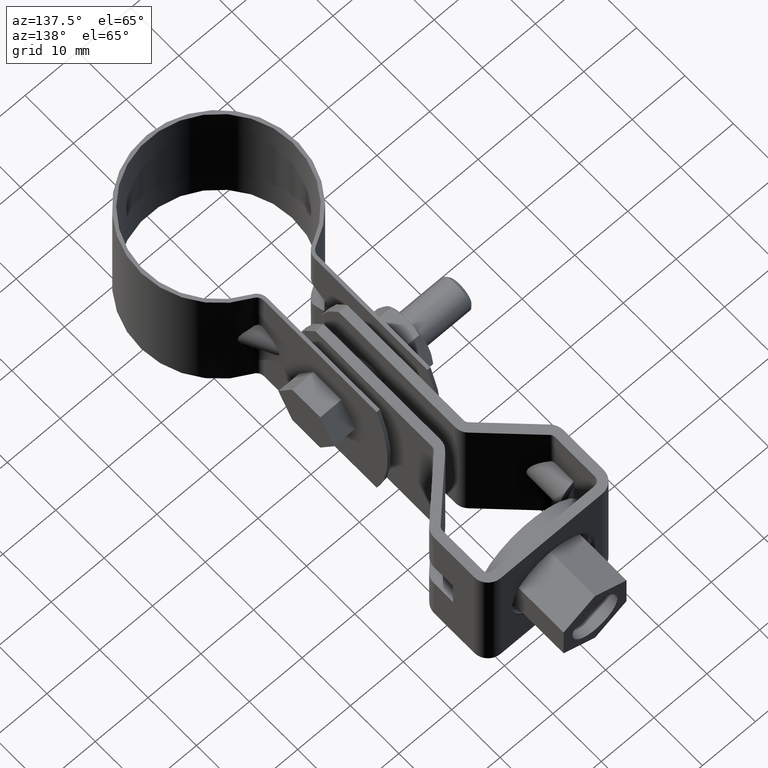
[diagram: clean part render]
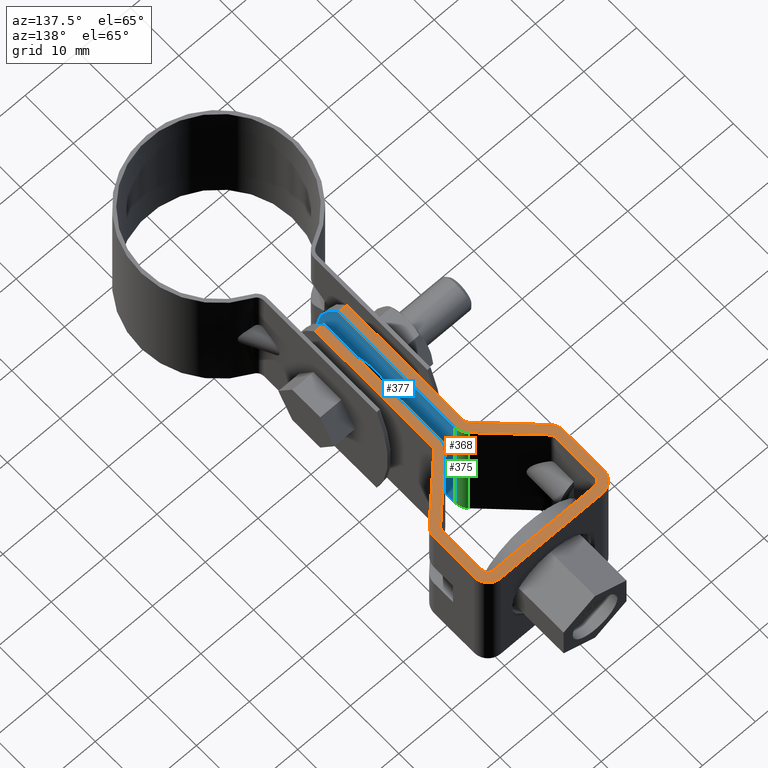
[diagram: same view with three faces highlighted in distinct colors, each labeled with its STEP entity id]
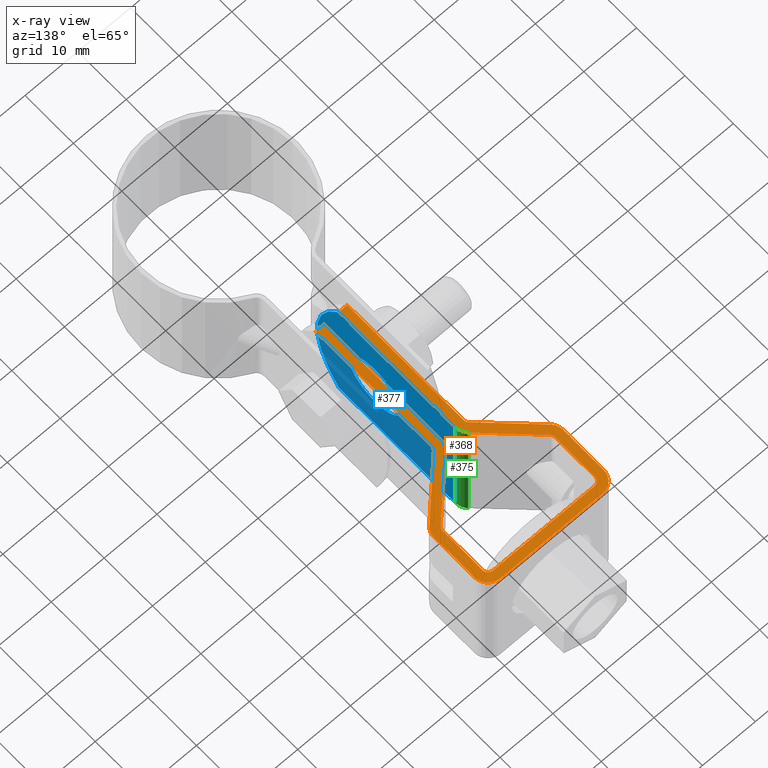
[diagram: x-ray of the same camera — body ghosted, the three highlighted faces saturated]
A machine part, auxiliary view with three faces highlighted in distinct colors.
The next image is the same camera in x-ray (body ghosted, the three faces saturated) — at least one of them is partly hidden behind the body in this view.
Their STEP definitions:

[orange] entity #368 — the highlighted planar face has unit normal (0, -0, 1).
#368 = ADVANCED_FACE( '', ( #613 ), #614, .T. );
#613 = FACE_OUTER_BOUND( '', #885, .T. );
#614 = PLANE( '', #886 );
#885 = EDGE_LOOP( '', ( #1756, #1757, #1758, #1759, #1760, #1761, #1762, #1763, #1764, #1765, #1766, #1767, #1768, #1769, #1770, #1771, #1772, #1773, #1774, #1775, #1776, #1777, #1778, #1779, #1780, #1781, #1782, #1783 ) );
#886 = AXIS2_PLACEMENT_3D( '', #1784, #1785, #1786 );
#1756 = ORIENTED_EDGE( '', *, *, #2206, .T. );
#1757 = ORIENTED_EDGE( '', *, *, #2171, .T. );
#1758 = ORIENTED_EDGE( '', *, *, #2180, .F. );
#1759 = ORIENTED_EDGE( '', *, *, #2174, .F. );
#1760 = ORIENTED_EDGE( '', *, *, #2179, .F. );
#1761 = ORIENTED_EDGE( '', *, *, #2168, .T. );
#1762 = ORIENTED_EDGE( '', *, *, #2215, .T. );
#1763 = ORIENTED_EDGE( '', *, *, #2216, .T. );
#1764 = ORIENTED_EDGE( '', *, *, #2217, .T. );
#1765 = ORIENTED_EDGE( '', *, *, #2123, .T. );
#1766 = ORIENTED_EDGE( '', *, *, #2214, .T. );
#1767 = ORIENTED_EDGE( '', *, *, #2166, .F. );
#1768 = ORIENTED_EDGE( '', *, *, #2153, .F. );
#1769 = ORIENTED_EDGE( '', *, *, #2218, .F. );
#1770 = ORIENTED_EDGE( '', *, *, #2219, .F. );
#1771 = ORIENTED_EDGE( '', *, *, #2220, .F. );
#1772 = ORIENTED_EDGE( '', *, *, #2130, .T. );
#1773 = ORIENTED_EDGE( '', *, *, #2126, .T. );
#1774 = ORIENTED_EDGE( '', *, *, #2221, .T. );
#1775 = ORIENTED_EDGE( '', *, *, #2222, .F. );
#1776 = ORIENTED_EDGE( '', *, *, #2159, .F. );
#1777 = ORIENTED_EDGE( '', *, *, #2156, .F. );
#1778 = ORIENTED_EDGE( '', *, *, #2163, .F. );
#1779 = ORIENTED_EDGE( '', *, *, #2164, .F. );
#1780 = ORIENTED_EDGE( '', *, *, #2213, .T. );
#1781 = ORIENTED_EDGE( '', *, *, #2211, .T. );
#1782 = ORIENTED_EDGE( '', *, *, #2208, .T. );
#1783 = ORIENTED_EDGE( '', *, *, #2204, .T. );
#1784 = CARTESIAN_POINT( '', ( 9.65000000391955, 66.2129669072768, 12.5000013818920 ) );
#1785 = DIRECTION( '', ( 1.87698704392248E-011, -9.98350074832307E-009, 1.00000000000000 ) );
#1786 = DIRECTION( '', ( 1.39877502405819E-011, 1.00000000000000, 9.98350074832280E-009 ) );
#2123 = EDGE_CURVE( '', #2577, #2578, #2579, .T. );
#2126 = EDGE_CURVE( '', #2582, #2583, #2584, .T. );
#2130 = EDGE_CURVE( '', #2589, #2582, #2590, .T. );
#2153 = EDGE_CURVE( '', #2626, #2628, #2629, .T. );
#2156 = EDGE_CURVE( '', #2631, #2633, #2634, .T. );
#2159 = EDGE_CURVE( '', #2633, #2637, #2638, .T. );
#2163 = EDGE_CURVE( '', #2641, #2631, #2643, .T. );
#2164 = EDGE_CURVE( '', #2644, #2641, #2645, .T. );
#2166 = EDGE_CURVE( '', #2628, #2647, #2648, .T. );
#2168 = EDGE_CURVE( '', #2650, #2651, #2652, .F. );
#2171 = EDGE_CURVE( '', #2655, #2656, #2657, .T. );
#2174 = EDGE_CURVE( '', #2660, #2661, #2662, .T. );
#2179 = EDGE_CURVE( '', #2650, #2660, #2669, .T. );
#2180 = EDGE_CURVE( '', #2661, #2656, #2670, .T. );
#2204 = EDGE_CURVE( '', #2711, #2709, #2712, .T. );
#2206 = EDGE_CURVE( '', #2709, #2655, #2714, .T. );
#2208 = EDGE_CURVE( '', #2716, #2711, #2717, .T. );
#2211 = EDGE_CURVE( '', #2720, #2716, #2721, .T. );
#2213 = EDGE_CURVE( '', #2644, #2720, #2723, .T. );
#2214 = EDGE_CURVE( '', #2578, #2647, #2724, .T. );
#2215 = EDGE_CURVE( '', #2651, #2725, #2726, .T. );
#2216 = EDGE_CURVE( '', #2725, #2727, #2728, .T. );
#2217 = EDGE_CURVE( '', #2727, #2577, #2729, .T. );
#2218 = EDGE_CURVE( '', #2730, #2626, #2731, .T. );
#2219 = EDGE_CURVE( '', #2732, #2730, #2733, .T. );
#2220 = EDGE_CURVE( '', #2589, #2732, #2734, .F. );
#2221 = EDGE_CURVE( '', #2583, #2735, #2736, .T. );
#2222 = EDGE_CURVE( '', #2637, #2735, #2737, .T. );
#2577 = VERTEX_POINT( '', #3335 );
#2578 = VERTEX_POINT( '', #3336 );
#2579 = CIRCLE( '', #3337, 2.59999999999999 );
#2582 = VERTEX_POINT( '', #3342 );
#2583 = VERTEX_POINT( '', #3343 );
#2584 = LINE( '', #3344, #3345 );
#2589 = VERTEX_POINT( '', #3350 );
#2590 = LINE( '', #3351, #3352 );
#2626 = VERTEX_POINT( '', #3425 );
#2628 = VERTEX_POINT( '', #3428 );
#2629 = LINE( '', #3429, #3430 );
#2631 = VERTEX_POINT( '', #3433 );
#2633 = VERTEX_POINT( '', #3436 );
#2634 = CIRCLE( '', #3437, 0.999999999999999 );
#2637 = VERTEX_POINT( '', #3442 );
#2638 = LINE( '', #3443, #3444 );
#2641 = VERTEX_POINT( '', #3449 );
#2643 = LINE( '', #3452, #3453 );
#2644 = VERTEX_POINT( '', #3454 );
#2645 = CIRCLE( '', #3455, 1.00000000000000 );
#2647 = VERTEX_POINT( '', #3458 );
#2648 = CIRCLE( '', #3459, 2.59999999999999 );
#2650 = VERTEX_POINT( '', #3462 );
#2651 = VERTEX_POINT( '', #3463 );
#2652 = CIRCLE( '', #3464, 1.00000000000000 );
#2655 = VERTEX_POINT( '', #3469 );
#2656 = VERTEX_POINT( '', #3470 );
#2657 = CIRCLE( '', #3471, 2.60000000000000 );
#2660 = VERTEX_POINT( '', #3476 );
#2661 = VERTEX_POINT( '', #3477 );
#2662 = LINE( '', #3478, #3479 );
#2669 = LINE( '', #3486, #3487 );
#2670 = LINE( '', #3488, #3489 );
#2709 = VERTEX_POINT( '', #3564 );
#2711 = VERTEX_POINT( '', #3567 );
#2712 = CIRCLE( '', #3568, 1.00000000000000 );
#2714 = LINE( '', #3571, #3572 );
#2716 = VERTEX_POINT( '', #3575 );
#2717 = LINE( '', #3576, #3577 );
#2720 = VERTEX_POINT( '', #3582 );
#2721 = CIRCLE( '', #3583, 1.00000000000000 );
#2723 = LINE( '', #3586, #3587 );
#2724 = LINE( '', #3588, #3589 );
#2725 = VERTEX_POINT( '', #3590 );
#2726 = LINE( '', #3591, #3592 );
#2727 = VERTEX_POINT( '', #3593 );
#2728 = CIRCLE( '', #3594, 2.59999999999999 );
#2729 = LINE( '', #3595, #3596 );
#2730 = VERTEX_POINT( '', #3597 );
#2731 = CIRCLE( '', #3598, 2.59999999999999 );
#2732 = VERTEX_POINT( '', #3599 );
#2733 = LINE( '', #3600, #3601 );
#2734 = CIRCLE( '', #3602, 0.999999999999998 );
#2735 = VERTEX_POINT( '', #3603 );
#2736 = LINE( '', #3604, #3605 );
#2737 = CIRCLE( '', #3606, 2.59999999999999 );
#3335 = CARTESIAN_POINT( '', ( 12.2500000039195, 66.2129669072404, 12.5000013818432 ) );
#3336 = CARTESIAN_POINT( '', ( 9.65000000395592, 68.8129669072768, 12.5000014078491 ) );
#3337 = AXIS2_PLACEMENT_3D( '', #4002, #4003, #4004 );
#3342 = CARTESIAN_POINT( '', ( -2.99999999668052, 23.3129669405422, 12.5000009538372 ) );
#3343 = CARTESIAN_POINT( '', ( -1.39999999668053, 23.3129669405198, 12.5000009538072 ) );
#3344 = CARTESIAN_POINT( '', ( -38.4737108532763, 23.3129669459299, 12.5000009604163 ) );
#3345 = VECTOR( '', #4007, 999.999999999998 );
#3350 = CARTESIAN_POINT( '', ( -2.99999999634406, 47.3671133119744, 12.5000011939818 ) );
#3351 = CARTESIAN_POINT( '', ( -2.99999999633816, 47.7885770808644, 12.5000011981895 ) );
#3352 = VECTOR( '', #4017, 1000.00000000000 );
#3425 = CARTESIAN_POINT( '', ( -12.2499999961966, 57.9087727066976, 12.5000012993981 ) );
#3428 = CARTESIAN_POINT( '', ( -12.2499999960804, 66.2129669075835, 12.5000013823030 ) );
#3429 = CARTESIAN_POINT( '', ( -12.2499999961966, 57.9087727066976, 12.5000012993981 ) );
#3430 = VECTOR( '', #4048, 1000.00000000000 );
#3433 = CARTESIAN_POINT( '', ( -10.6499999961966, 57.9087726764511, 12.5000012993681 ) );
#3436 = CARTESIAN_POINT( '', ( -10.3483238317371, 57.1929907119284, 12.5000012922164 ) );
#3437 = AXIS2_PLACEMENT_3D( '', #4051, #4052, #4053 );
#3442 = CARTESIAN_POINT( '', ( -2.18435802393874, 49.2281463894870, 12.5000012125461 ) );
#3443 = CARTESIAN_POINT( '', ( -10.3483238317371, 57.1929907119284, 12.5000012922164 ) );
#3444 = VECTOR( '', #4056, 1000.00000000000 );
#3449 = CARTESIAN_POINT( '', ( -10.6499999960804, 66.2129669075611, 12.5000013822730 ) );
#3452 = CARTESIAN_POINT( '', ( -10.6499999960804, 66.2129669075611, 12.5000013822730 ) );
#3453 = VECTOR( '', #4060, 1000.00000000000 );
#3454 = CARTESIAN_POINT( '', ( -9.64999999606646, 67.2129669075471, 12.5000013922377 ) );
#3455 = AXIS2_PLACEMENT_3D( '', #4061, #4062, #4063 );
#3458 = CARTESIAN_POINT( '', ( -9.64999999604408, 68.8129669075471, 12.5000014082113 ) );
#3459 = AXIS2_PLACEMENT_3D( '', #4065, #4066, #4067 );
#3462 = CARTESIAN_POINT( '', ( 3.00000000365593, 47.3671133118901, 12.5000011938692 ) );
#3463 = CARTESIAN_POINT( '', ( 3.30167616813544, 48.0828952764044, 12.5000012010096 ) );
#3464 = AXIS2_PLACEMENT_3D( '', #4069, #4070, #4071 );
#3469 = CARTESIAN_POINT( '', ( 2.18435803130267, 49.2281463894255, 12.5000012124642 ) );
#3470 = CARTESIAN_POINT( '', ( 1.40000000365594, 47.3671132816884, 12.5000011938993 ) );
#3471 = AXIS2_PLACEMENT_3D( '', #4074, #4075, #4076 );
#3476 = CARTESIAN_POINT( '', ( 3.00000000331946, 23.3129669404581, 12.5000009537247 ) );
#3477 = CARTESIAN_POINT( '', ( 1.40000000331947, 23.3129669404804, 12.5000009537547 ) );
#3478 = CARTESIAN_POINT( '', ( 38.4737108599154, 23.3129669448533, 12.5000009589720 ) );
#3479 = VECTOR( '', #4079, 1000.00000000000 );
#3486 = CARTESIAN_POINT( '', ( 3.00000000366182, 47.7885770807802, 12.5000011980769 ) );
#3487 = VECTOR( '', #4092, 1000.00000000000 );
#3488 = CARTESIAN_POINT( '', ( 1.40000000325652, 18.8129669073924, 12.5000009088289 ) );
#3489 = VECTOR( '', #4093, 1000.00000000000 );
#3564 = CARTESIAN_POINT( '', ( 10.3483238393239, 57.1929907116386, 12.5000012918280 ) );
#3567 = CARTESIAN_POINT( '', ( 10.6500000038034, 57.9087726761529, 12.5000012989683 ) );
#3568 = AXIS2_PLACEMENT_3D( '', #4129, #4130, #4131 );
#3571 = CARTESIAN_POINT( '', ( 10.3483238393239, 57.1929907116386, 12.5000012918280 ) );
#3572 = VECTOR( '', #4133, 1000.00000000000 );
#3575 = CARTESIAN_POINT( '', ( 10.6500000039195, 66.2129669072628, 12.5000013818732 ) );
#3576 = CARTESIAN_POINT( '', ( 10.6500000039195, 66.2129669072628, 12.5000013818732 ) );
#3577 = VECTOR( '', #4135, 1000.00000000000 );
#3582 = CARTESIAN_POINT( '', ( 9.65000000393354, 67.2129669072768, 12.5000013918755 ) );
#3583 = AXIS2_PLACEMENT_3D( '', #4138, #4139, #4140 );
#3586 = CARTESIAN_POINT( '', ( -9.64999999606647, 67.2129669075467, 12.5000013922378 ) );
#3587 = VECTOR( '', #4142, 1000.00000000000 );
#3588 = CARTESIAN_POINT( '', ( 9.65000000395592, 68.8129669072768, 12.5000014078491 ) );
#3589 = VECTOR( '', #4143, 1000.00000000000 );
#3590 = CARTESIAN_POINT( '', ( 11.4656419761567, 56.0477395986174, 12.5000012803734 ) );
#3591 = CARTESIAN_POINT( '', ( 3.90167616814363, 48.6682611029856, 12.5000012068423 ) );
#3592 = VECTOR( '', #4144, 1000.00000000000 );
#3593 = CARTESIAN_POINT( '', ( 12.2500000038034, 57.9087727063546, 12.5000012989383 ) );
#3594 = AXIS2_PLACEMENT_3D( '', #4145, #4146, #4147 );
#3595 = CARTESIAN_POINT( '', ( 12.2500000038034, 57.9087727063546, 12.5000012989383 ) );
#3596 = VECTOR( '', #4148, 1000.00000000000 );
#3597 = CARTESIAN_POINT( '', ( -11.4656419686019, 56.0477395989385, 12.5000012808038 ) );
#3598 = AXIS2_PLACEMENT_3D( '', #4149, #4150, #4151 );
#3599 = CARTESIAN_POINT( '', ( -3.30167616080354, 48.0828952764971, 12.5000012011335 ) );
#3600 = CARTESIAN_POINT( '', ( -3.90167616079536, 48.6682611030951, 12.5000012069887 ) );
#3601 = VECTOR( '', #4152, 1000.00000000000 );
#3602 = AXIS2_PLACEMENT_3D( '', #4153, #4154, #4155 );
#3603 = CARTESIAN_POINT( '', ( -1.39999999634407, 47.3671132817279, 12.5000011939518 ) );
#3604 = CARTESIAN_POINT( '', ( -1.39999999674347, 18.8129669074317, 12.5000009088814 ) );
#3605 = VECTOR( '', #4156, 1000.00000000000 );
#3606 = AXIS2_PLACEMENT_3D( '', #4157, #4158, #4159 );
#4002 = CARTESIAN_POINT( '', ( 9.65000000391955, 66.2129669072768, 12.5000013818920 ) );
#4003 = DIRECTION( '', ( 1.87698704392248E-011, -9.98350074832307E-009, 1.00000000000000 ) );
#4004 = DIRECTION( '', ( 1.00000000000000, -1.39877500531929E-011, -1.87698705788715E-011 ) );
#4007 = DIRECTION( '', ( 1.00000000000000, -1.39876275925575E-011, -1.87698705788703E-011 ) );
#4017 = DIRECTION( '', ( -1.39875167576440E-011, -1.00000000000000, -9.98350074832280E-009 ) );
#4048 = DIRECTION( '', ( 1.39876277799465E-011, 1.00000000000000, 9.98350074832280E-009 ) );
#4051 = CARTESIAN_POINT( '', ( -9.64999999619660, 57.9087726764371, 12.5000012993493 ) );
#4052 = DIRECTION( '', ( 1.87698704392248E-011, -9.98350074832307E-009, 1.00000000000000 ) );
#4053 = DIRECTION( '', ( -1.00000000000000, 1.39876275925575E-011, 1.87698705788703E-011 ) );
#4056 = DIRECTION( '', ( 0.715781964508736, -0.698323835540514, -6.98515166942712E-009 ) );
#4060 = DIRECTION( '', ( -1.39876277799465E-011, -1.00000000000000, -9.98350074832280E-009 ) );
#4061 = CARTESIAN_POINT( '', ( -9.64999999608044, 66.2129669075471, 12.5000013822542 ) );
#4062 = DIRECTION( '', ( 1.87698704392248E-011, -9.98350074832307E-009, 1.00000000000000 ) );
#4063 = DIRECTION( '', ( 1.39876277799465E-011, 1.00000000000000, 9.98350074832281E-009 ) );
#4065 = CARTESIAN_POINT( '', ( -9.64999999608044, 66.2129669075471, 12.5000013822542 ) );
#4066 = DIRECTION( '', ( -1.87698704392248E-011, 9.98350074832307E-009, -1.00000000000000 ) );
#4067 = DIRECTION( '', ( -1.00000000000000, 1.39876275925575E-011, 1.87698705788703E-011 ) );
#4069 = CARTESIAN_POINT( '', ( 4.00000000365593, 47.3671133118761, 12.5000011938505 ) );
#4070 = DIRECTION( '', ( 1.87698704392248E-011, -9.98350074832307E-009, 1.00000000000000 ) );
#4071 = DIRECTION( '', ( 1.00000000000000, -1.39877500531929E-011, -1.87698705788715E-011 ) );
#4074 = CARTESIAN_POINT( '', ( 4.00000000365593, 47.3671132816520, 12.5000011938505 ) );
#4075 = DIRECTION( '', ( 1.87698704392248E-011, -9.98350074832307E-009, 1.00000000000000 ) );
#4076 = DIRECTION( '', ( 1.00000000000000, -1.39877500531929E-011, -1.87698705788715E-011 ) );
#4079 = DIRECTION( '', ( -1.00000000000000, 1.39877500531929E-011, 1.87698705788715E-011 ) );
#4092 = DIRECTION( '', ( -1.39878612628844E-011, -1.00000000000000, -9.98350074832280E-009 ) );
#4093 = DIRECTION( '', ( 1.39878612628844E-011, 1.00000000000000, 9.98350074832280E-009 ) );
#4129 = CARTESIAN_POINT( '', ( 9.65000000380339, 57.9087726761668, 12.5000012989871 ) );
#4130 = DIRECTION( '', ( -1.87698704392248E-011, 9.98350074832307E-009, -1.00000000000000 ) );
#4131 = DIRECTION( '', ( 1.00000000000000, -1.39877500531929E-011, -1.87698705788715E-011 ) );
#4133 = DIRECTION( '', ( -0.715781964528273, -0.698323835520488, -6.95828139975370E-009 ) );
#4135 = DIRECTION( '', ( -1.39877502405819E-011, -1.00000000000000, -9.98350074832280E-009 ) );
#4138 = CARTESIAN_POINT( '', ( 9.65000000391955, 66.2129669072768, 12.5000013818920 ) );
#4139 = DIRECTION( '', ( -1.87698704392248E-011, 9.98350074832307E-009, -1.00000000000000 ) );
#4140 = DIRECTION( '', ( 1.39877502405819E-011, 1.00000000000000, 9.98350074832280E-009 ) );
#4142 = DIRECTION( '', ( 1.00000000000000, -1.39877500531929E-011, -1.87698705788715E-011 ) );
#4143 = DIRECTION( '', ( -1.00000000000000, 1.39877500531929E-011, 1.87698705788715E-011 ) );
#4144 = DIRECTION( '', ( 0.715781964528273, 0.698323835520488, 6.95828139975370E-009 ) );
#4145 = CARTESIAN_POINT( '', ( 9.65000000380339, 57.9087727063909, 12.5000012989871 ) );
#4146 = DIRECTION( '', ( 1.87698704392248E-011, -9.98350074832307E-009, 1.00000000000000 ) );
#4147 = DIRECTION( '', ( 0.698323835520490, -0.715781964528272, -7.15911722642150E-009 ) );
#4148 = DIRECTION( '', ( 1.39877502405819E-011, 1.00000000000000, 9.98350074832280E-009 ) );
#4149 = CARTESIAN_POINT( '', ( -9.64999999619660, 57.9087727066612, 12.5000012993493 ) );
#4150 = DIRECTION( '', ( -1.87698704392238E-011, 9.98350074832307E-009, -1.00000000000000 ) );
#4151 = DIRECTION( '', ( -0.698323835540512, -0.715781964508738, -7.13290233039142E-009 ) );
#4152 = DIRECTION( '', ( -0.715781964508736, 0.698323835540514, 6.98515166942712E-009 ) );
#4153 = CARTESIAN_POINT( '', ( -3.99999999634406, 47.3671133119883, 12.5000011940006 ) );
#4154 = DIRECTION( '', ( -1.87698704392248E-011, 9.98350074832307E-009, -1.00000000000000 ) );
#4155 = DIRECTION( '', ( -1.00000000000000, 1.39876275925575E-011, 1.87698705788703E-011 ) );
#4156 = DIRECTION( '', ( 1.39875167576440E-011, 1.00000000000000, 9.98350074832280E-009 ) );
#4157 = CARTESIAN_POINT( '', ( -3.99999999634405, 47.3671132817642, 12.5000011940006 ) );
#4158 = DIRECTION( '', ( -1.87698704392248E-011, 9.98350074832307E-009, -1.00000000000000 ) );
#4159 = DIRECTION( '', ( -1.00000000000000, 1.39876275925575E-011, 1.87698705788703E-011 ) );

[blue] entity #377 — the highlighted planar face has unit normal (1, -0, -0).
#377 = ADVANCED_FACE( '', ( #632, #633 ), #634, .T. );
#632 = FACE_BOUND( '', #904, .T. );
#633 = FACE_OUTER_BOUND( '', #905, .T. );
#634 = PLANE( '', #906 );
#904 = EDGE_LOOP( '', ( #1849 ) );
#905 = EDGE_LOOP( '', ( #1850, #1851, #1852, #1853 ) );
#906 = AXIS2_PLACEMENT_3D( '', #1854, #1855, #1856 );
#1849 = ORIENTED_EDGE( '', *, *, #2228, .F. );
#1850 = ORIENTED_EDGE( '', *, *, #2221, .F. );
#1851 = ORIENTED_EDGE( '', *, *, #2128, .F. );
#1852 = ORIENTED_EDGE( '', *, *, #2107, .T. );
#1853 = ORIENTED_EDGE( '', *, *, #2227, .F. );
#1854 = CARTESIAN_POINT( '', ( -1.39999999674347, 18.8129669074317, 12.5000009088814 ) );
#1855 = DIRECTION( '', ( 1.00000000000000, -1.39878496371630E-011, -1.87698093485548E-011 ) );
#1856 = DIRECTION( '', ( -1.39878498245514E-011, -1.00000000000000, -9.98350074832280E-009 ) );
#2107 = EDGE_CURVE( '', #2546, #2544, #2547, .T. );
#2128 = EDGE_CURVE( '', #2546, #2583, #2586, .T. );
#2221 = EDGE_CURVE( '', #2583, #2735, #2736, .T. );
#2227 = EDGE_CURVE( '', #2735, #2544, #2742, .T. );
#2228 = EDGE_CURVE( '', #2743, #2743, #2744, .F. );
#2544 = VERTEX_POINT( '', #3292 );
#2546 = VERTEX_POINT( '', #3294 );
#2547 = LINE( '', #3295, #3296 );
#2583 = VERTEX_POINT( '', #3343 );
#2586 = CIRCLE( '', #3347, 19.6111110000000 );
#2735 = VERTEX_POINT( '', #3603 );
#2736 = LINE( '', #3604, #3605 );
#2742 = LINE( '', #3615, #3616 );
#2743 = VERTEX_POINT( '', #3617 );
#2744 = CIRCLE( '', #3618, 5.25000000000002 );
#3292 = CARTESIAN_POINT( '', ( -1.39999999681331, 47.3671135313154, -12.4999988060482 ) );
#3294 = CARTESIAN_POINT( '', ( -1.39999999714977, 23.3129671901073, -12.4999990461928 ) );
#3295 = CARTESIAN_POINT( '', ( -1.39999999721272, 18.8129671570193, -12.4999990911185 ) );
#3296 = VECTOR( '', #3974, 1000.00000000000 );
#3343 = CARTESIAN_POINT( '', ( -1.39999999668053, 23.3129669405198, 12.5000009538072 ) );
#3347 = AXIS2_PLACEMENT_3D( '', #4011, #4012, #4013 );
#3603 = CARTESIAN_POINT( '', ( -1.39999999634407, 47.3671132817279, 12.5000011939518 ) );
#3604 = CARTESIAN_POINT( '', ( -1.39999999674347, 18.8129669074317, 12.5000009088814 ) );
#3605 = VECTOR( '', #4156, 1000.00000000000 );
#3615 = CARTESIAN_POINT( '', ( -1.39999999634406, 47.3671132817279, 12.5000011939518 ) );
#3616 = VECTOR( '', #4164, 1000.00000000000 );
#3617 = CARTESIAN_POINT( '', ( -1.39999999688368, 25.5629670322253, 9.76270078931197E-007 ) );
#3618 = AXIS2_PLACEMENT_3D( '', #4165, #4166, #4167 );
#3974 = DIRECTION( '', ( 1.39875167576440E-011, 1.00000000000000, 9.98350074832280E-009 ) );
#4011 = CARTESIAN_POINT( '', ( -1.39999999670377, 38.4240780322253, 1.10466895353323E-006 ) );
#4012 = DIRECTION( '', ( -1.00000000000000, 1.39878496371630E-011, 1.87698093485548E-011 ) );
#4013 = DIRECTION( '', ( -1.39878498245514E-011, -1.00000000000000, -9.98350074832280E-009 ) );
#4156 = DIRECTION( '', ( 1.39875167576440E-011, 1.00000000000000, 9.98350074832280E-009 ) );
#4164 = DIRECTION( '', ( -1.87698092089071E-011, 9.98350068858617E-009, -1.00000000000000 ) );
#4165 = CARTESIAN_POINT( '', ( -1.39999999681024, 30.8129670322254, 1.02868345785989E-006 ) );
#4166 = DIRECTION( '', ( -1.00000000000000, 1.39878496371630E-011, 1.87698093485548E-011 ) );
#4167 = DIRECTION( '', ( -1.39878498245514E-011, -1.00000000000000, -9.98350074832280E-009 ) );

[green] entity #375 — the highlighted cylindrical surface (edge-blend (fillet) strip) has radius 2.6 mm, axis along (0, -0, 1).
#375 = ADVANCED_FACE( '', ( #627 ), #628, .T. );
#627 = FACE_OUTER_BOUND( '', #899, .T. );
#628 = CYLINDRICAL_SURFACE( '', #900, 2.60000000000001 );
#899 = EDGE_LOOP( '', ( #1837, #1838, #1839, #1840 ) );
#900 = AXIS2_PLACEMENT_3D( '', #1841, #1842, #1843 );
#1837 = ORIENTED_EDGE( '', *, *, #2222, .T. );
#1838 = ORIENTED_EDGE( '', *, *, #2227, .T. );
#1839 = ORIENTED_EDGE( '', *, *, #2106, .T. );
#1840 = ORIENTED_EDGE( '', *, *, #2160, .T. );
#1841 = CARTESIAN_POINT( '', ( -3.99999999634405, 47.3671132817642, 12.5000011940006 ) );
#1842 = DIRECTION( '', ( 1.87698092089071E-011, -9.98350068858617E-009, 1.00000000000000 ) );
#1843 = DIRECTION( '', ( -1.39876277799465E-011, -1.00000000000000, -9.98350068858591E-009 ) );
#2106 = EDGE_CURVE( '', #2544, #2542, #2545, .F. );
#2160 = EDGE_CURVE( '', #2542, #2637, #2639, .F. );
#2222 = EDGE_CURVE( '', #2637, #2735, #2737, .T. );
#2227 = EDGE_CURVE( '', #2735, #2544, #2742, .T. );
#2542 = VERTEX_POINT( '', #3289 );
#2544 = VERTEX_POINT( '', #3292 );
#2545 = CIRCLE( '', #3293, 2.59999999999999 );
#2637 = VERTEX_POINT( '', #3442 );
#2639 = LINE( '', #3445, #3446 );
#2735 = VERTEX_POINT( '', #3603 );
#2737 = CIRCLE( '', #3606, 2.59999999999999 );
#2742 = LINE( '', #3615, #3616 );
#3289 = CARTESIAN_POINT( '', ( -2.18435802440798, 49.2281466390745, -12.4999987874539 ) );
#3292 = CARTESIAN_POINT( '', ( -1.39999999681331, 47.3671135313154, -12.4999988060482 ) );
#3293 = AXIS2_PLACEMENT_3D( '', #3971, #3972, #3973 );
#3442 = CARTESIAN_POINT( '', ( -2.18435802393874, 49.2281463894870, 12.5000012125461 ) );
#3445 = CARTESIAN_POINT( '', ( -2.18435802440798, 49.2281466390745, -12.4999987874539 ) );
#3446 = VECTOR( '', #4057, 1000.00000000000 );
#3603 = CARTESIAN_POINT( '', ( -1.39999999634407, 47.3671132817279, 12.5000011939518 ) );
#3606 = AXIS2_PLACEMENT_3D( '', #4157, #4158, #4159 );
#3615 = CARTESIAN_POINT( '', ( -1.39999999634406, 47.3671132817279, 12.5000011939518 ) );
#3616 = VECTOR( '', #4164, 1000.00000000000 );
#3971 = CARTESIAN_POINT( '', ( -3.99999999681330, 47.3671135313518, -12.4999988059994 ) );
#3972 = DIRECTION( '', ( -1.87698704392248E-011, 9.98350074832307E-009, -1.00000000000000 ) );
#3973 = DIRECTION( '', ( -1.00000000000000, 1.39876275925575E-011, 1.87698705788703E-011 ) );
#4057 = DIRECTION( '', ( -1.87698092089071E-011, 9.98350068858617E-009, -1.00000000000000 ) );
#4157 = CARTESIAN_POINT( '', ( -3.99999999634405, 47.3671132817642, 12.5000011940006 ) );
#4158 = DIRECTION( '', ( -1.87698704392248E-011, 9.98350074832307E-009, -1.00000000000000 ) );
#4159 = DIRECTION( '', ( -1.00000000000000, 1.39876275925575E-011, 1.87698705788703E-011 ) );
#4164 = DIRECTION( '', ( -1.87698092089071E-011, 9.98350068858617E-009, -1.00000000000000 ) );